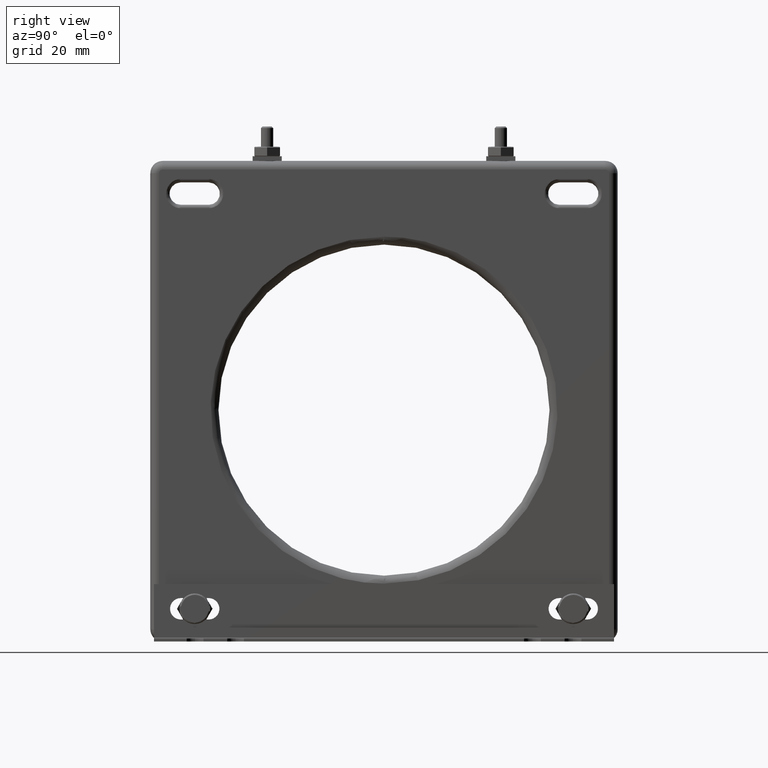
[diagram: clean part render]
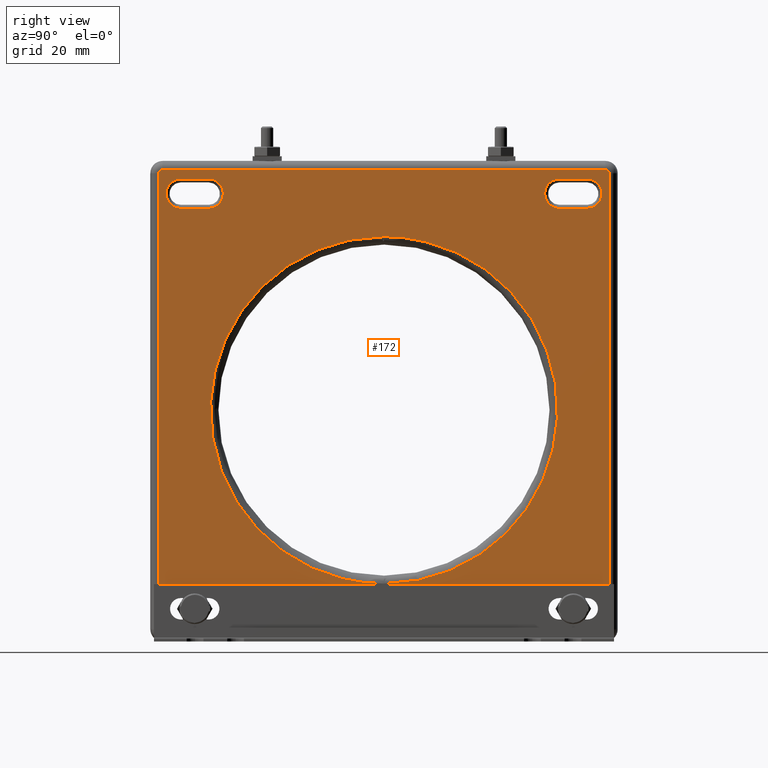
[diagram: same view with one face highlighted and labeled with its STEP entity id]
A machine part, right view. The second image highlights one B-rep face of the part: STEP entity #172.
In plain terms, the highlighted planar face has unit normal (-1, 0, 0).
Its self-contained STEP definition (entity closure, byte-faithful):
#1 = CARTESIAN_POINT ( 'NONE',  ( 1.188976377952758012, 2.879826158549489978, 3.070481629136681878 ) ) ;
#172 = ADVANCED_FACE ( 'NONE', ( #1204, #12539, #11575, #1322 ), #2161, .F. ) ;
#494 = CARTESIAN_POINT ( 'NONE',  ( 1.188976377952755126, -2.889169762202465463, 3.041811023622047028 ) ) ;
#595 = EDGE_LOOP ( 'NONE', ( #8872, #4666 ) ) ;
#681 = CARTESIAN_POINT ( 'NONE',  ( 1.188976377952758012, 2.854126309645356407, 3.087017919683168188 ) ) ;
#696 = CARTESIAN_POINT ( 'NONE',  ( 1.188976377561663744, -2.881900929100080777, 3.066835738141861611 ) ) ;
#740 = AXIS2_PLACEMENT_3D ( 'NONE', #5502, #2229, #10488 ) ;
#822 = LINE ( 'NONE', #11132, #8361 ) ;
#832 = CARTESIAN_POINT ( 'NONE',  ( 1.188976377463769607, -2.881633161054301340, 3.067252941704019520 ) ) ;
#856 = LINE ( 'NONE', #1736, #12464 ) ;
#866 = VERTEX_POINT ( 'NONE', #12679 ) ;
#956 = CARTESIAN_POINT ( 'NONE',  ( 1.188976377952728480, 2.875328211774759168, 3.074974902429919776 ) ) ;
#1026 = ORIENTED_EDGE ( 'NONE', *, *, #9096, .F. ) ;
#1091 = CARTESIAN_POINT ( 'NONE',  ( 1.188976377952755126, 2.889169762202464575, 3.041811023622047028 ) ) ;
#1160 = CARTESIAN_POINT ( 'NONE',  ( 1.188976377952742913, 2.875127893488684361, 3.075171913769202181 ) ) ;
#1204 = FACE_BOUND ( 'NONE', #595, .T. ) ;
#1286 = CARTESIAN_POINT ( 'NONE',  ( 1.188976377952756014, -2.609055118110235938, 2.967316810461512411 ) ) ;
#1322 = FACE_BOUND ( 'NONE', #6374, .T. ) ;
#1432 = EDGE_CURVE ( 'NONE', #866, #12291, #11851, .T. ) ;
#1450 = B_SPLINE_CURVE_WITH_KNOTS ( 'NONE', 3,
 ( #494, #9724, #4533, #8692, #12853, #3502, #5753, #6912, #9918, #9094, #5003, #11075, #10129, #10938, #696, #13250, #832, #7052, #10050, #11141, #3904, #8071, #1789, #4734, #9159, #12097, #13049, #13319, #12229, #2679, #3974, #2887, #2616, #2818, #7938, #11219, #3840, #11009, #11966 ),
 .UNSPECIFIED., .F., .F.,
 ( 4, 2, 2, 2, 2, 2, 1, 1, 1, 2, 2, 2, 2, 2, 2, 2, 2, 2, 2, 2, 4 ),
 ( 0.000000000000000000, 0.1249999999989431787, 0.1874999999984011401, 0.2187499999981189214, 0.2499999999978367027, 0.3124999999972923326, 0.3437499999970106135, 0.3593749999968751663, 0.3671874999968166020, 0.3710937499967930653, 0.3749999999967695286, 0.4062499999969909070, 0.4218749999970990427, 0.4296874999971531106, 0.4374999999972071785, 0.4687499999973921416, 0.4843749999974846787, 0.4921874999975309195, 0.4999999999975771603, 0.7499999999987885246, 1.000000000000000000 ),
 .UNSPECIFIED. ) ;
#1508 = ORIENTED_EDGE ( 'NONE', *, *, #8777, .F. ) ;
#1567 = CARTESIAN_POINT ( 'NONE',  ( 1.188976377952757790, 2.858322435958809749, 3.085709083196776170 ) ) ;
#1583 = CARTESIAN_POINT ( 'NONE',  ( 1.188976377952755792, 1.404083524798027436E-17, -2.227551874387933228 ) ) ;
#1663 = VERTEX_POINT ( 'NONE', #6249 ) ;
#1684 = CARTESIAN_POINT ( 'NONE',  ( 1.188976377952755792, -2.587555920424066309E-16, 2.227551874387932784 ) ) ;
#1701 = CARTESIAN_POINT ( 'NONE',  ( 1.188976377580252874, 2.870092099305645572, 3.079455154633608416 ) ) ;
#1736 = CARTESIAN_POINT ( 'NONE',  ( 1.188976377952756014, -2.429921259842519721, 2.967316810461512411 ) ) ;
#1741 = ORIENTED_EDGE ( 'NONE', *, *, #1963, .F. ) ;
#1789 = CARTESIAN_POINT ( 'NONE',  ( 1.188976377673743645, -2.879680999769397509, 3.070025036113821493 ) ) ;
#1791 = CARTESIAN_POINT ( 'NONE',  ( 1.188976377952756014, -2.250787401574803503, 2.967316810461512411 ) ) ;
#1881 = CARTESIAN_POINT ( 'NONE',  ( 1.188976377952756014, 1.404083524798027436E-17, 2.591895787963685027 ) ) ;
#1926 = CARTESIAN_POINT ( 'NONE',  ( 1.188976377952755126, -2.842519685039370358, 3.088461100785141689 ) ) ;
#1963 = EDGE_CURVE ( 'NONE', #7182, #7726, #6534, .T. ) ;
#1981 = CARTESIAN_POINT ( 'NONE',  ( 1.188976377952756014, 2.609055118110235938, 2.967316810461512411 ) ) ;
#2124 = CARTESIAN_POINT ( 'NONE',  ( 1.188976377940969220, 2.873531656367810161, 3.076672006030262363 ) ) ;
#2161 = PLANE ( 'NONE',  #740 ) ;
#2229 = DIRECTION ( 'NONE',  ( -1.000000000000000000, 0.000000000000000000, 0.000000000000000000 ) ) ;
#2433 =( BOUNDED_CURVE ( )  B_SPLINE_CURVE ( 3, ( #6408, #4557, #11587, #3328 ),
 .UNSPECIFIED., .F., .T. ) 
 B_SPLINE_CURVE_WITH_KNOTS ( ( 4, 4 ),
 ( 0.000000000000000000, 0.5000000000000000000 ),
 .UNSPECIFIED. ) 
 CURVE ( )  GEOMETRIC_REPRESENTATION_ITEM ( )  RATIONAL_B_SPLINE_CURVE ( ( 1.000000000000000000, 0.3333333333333333703, 0.3333333333333333703, 1.000000000000000000 ) ) 
 REPRESENTATION_ITEM ( '' )  );
#2616 = CARTESIAN_POINT ( 'NONE',  ( 1.188976377952724262, -2.875683563854068314, 3.074619550350517816 ) ) ;
#2647 = CARTESIAN_POINT ( 'NONE',  ( 1.188976377952755792, 1.404083524798027436E-17, -2.227551874387933228 ) ) ;
#2655 = VECTOR ( 'NONE', #3924, 39.37007874015748143 ) ;
#2668 = CARTESIAN_POINT ( 'NONE',  ( 1.188976377963847808, 2.862611214961088724, 3.083943618160159605 ) ) ;
#2679 = CARTESIAN_POINT ( 'NONE',  ( 1.188976377952636776, -2.876319558974057777, 3.073965665493519239 ) ) ;
#2714 =( BOUNDED_CURVE ( )  B_SPLINE_CURVE ( 3, ( #1286, #5465, #3340, #11800 ),
 .UNSPECIFIED., .F., .F. ) 
 B_SPLINE_CURVE_WITH_KNOTS ( ( 4, 4 ),
 ( 0.000000000000000000, 1.000000000000000000 ),
 .UNSPECIFIED. ) 
 CURVE ( )  GEOMETRIC_REPRESENTATION_ITEM ( )  RATIONAL_B_SPLINE_CURVE ( ( 1.000000000000000000, 0.3333333333333333703, 0.3333333333333333703, 1.000000000000000000 ) ) 
 REPRESENTATION_ITEM ( '' )  );
#2737 = CARTESIAN_POINT ( 'NONE',  ( 1.188976377952756902, 2.842519685039370358, 3.088461100785141689 ) ) ;
#2751 = VECTOR ( 'NONE', #10699, 39.37007874015748143 ) ;
#2818 = CARTESIAN_POINT ( 'NONE',  ( 1.188976377952754016, -2.875641145331453874, 3.074662613039270465 ) ) ;
#2865 = EDGE_CURVE ( 'NONE', #11613, #3054, #822, .T. ) ;
#2887 = CARTESIAN_POINT ( 'NONE',  ( 1.188976377952738694, -2.875880575198725086, 3.074419232058829721 ) ) ;
#2948 = CARTESIAN_POINT ( 'NONE',  ( 1.188976377706005838, 2.870960176255349161, 3.078799016464372595 ) ) ;
#3010 = CARTESIAN_POINT ( 'NONE',  ( 1.188976377865511136, 2.883285508649549023, 3.065306975028669001 ) ) ;
#3049 = CARTESIAN_POINT ( 'NONE',  ( 1.188976377952755792, -2.889169762202467684, 0.1146456692913401659 ) ) ;
#3054 = VERTEX_POINT ( 'NONE', #4700 ) ;
#3079 = CARTESIAN_POINT ( 'NONE',  ( 1.188976377952369212, 2.874413033092121150, 3.075858786187025462 ) ) ;
#3294 = ORIENTED_EDGE ( 'NONE', *, *, #12677, .F. ) ;
#3328 = CARTESIAN_POINT ( 'NONE',  ( 1.188976377952755792, -2.587555920424066309E-16, 2.227551874387932784 ) ) ;
#3340 = CARTESIAN_POINT ( 'NONE',  ( 1.188976377952756014, -2.984476140608062877, 2.591895787963685471 ) ) ;
#3362 = VECTOR ( 'NONE', #4808, 39.37007874015748143 ) ;
#3414 = ORIENTED_EDGE ( 'NONE', *, *, #8779, .F. ) ;
#3424 = CARTESIAN_POINT ( 'NONE',  ( 1.188976377952755570, 2.889169762202463687, -2.233385826771653537 ) ) ;
#3502 = CARTESIAN_POINT ( 'NONE',  ( 1.188976377952754238, -2.887113368750510389, 3.055528528647343478 ) ) ;
#3595 = DIRECTION ( 'NONE',  ( -0.000000000000000000, 1.000000000000000000, -0.000000000000000000 ) ) ;
#3688 = VERTEX_POINT ( 'NONE', #10072 ) ;
#3757 = CARTESIAN_POINT ( 'NONE',  ( 1.188976377426871123, 2.868103761188036227, 3.080831979220645334 ) ) ;
#3789 = VERTEX_POINT ( 'NONE', #4062 ) ;
#3840 = CARTESIAN_POINT ( 'NONE',  ( 1.188976377865506695, -2.854731328784942956, 3.087250960508297837 ) ) ;
#3863 = DIRECTION ( 'NONE',  ( -0.000000000000000000, -1.000000000000000000, -0.000000000000000000 ) ) ;
#3904 = CARTESIAN_POINT ( 'NONE',  ( 1.188976377522629857, -2.880436243638998306, 3.069006243791163602 ) ) ;
#3924 = DIRECTION ( 'NONE',  ( 0.000000000000000000, 1.000000000000000000, 0.000000000000000000 ) ) ;
#3974 = CARTESIAN_POINT ( 'NONE',  ( 1.188976377952782215, -2.875985593843518817, 3.074311595505014871 ) ) ;
#4062 = CARTESIAN_POINT ( 'NONE',  ( 1.188976377952755792, -2.889169762202466796, -2.233385826771653537 ) ) ;
#4451 = ORIENTED_EDGE ( 'NONE', *, *, #8746, .F. ) ;
#4533 = CARTESIAN_POINT ( 'NONE',  ( 1.188976377952754238, -2.888892743790789641, 3.047672684561605116 ) ) ;
#4557 = CARTESIAN_POINT ( 'NONE',  ( 1.188976377952755792, 4.455103748775865569, -2.227551874387933228 ) ) ;
#4619 = EDGE_CURVE ( 'NONE', #12601, #1663, #2433, .T. ) ;
#4666 = ORIENTED_EDGE ( 'NONE', *, *, #12266, .F. ) ;
#4700 = CARTESIAN_POINT ( 'NONE',  ( 1.188976377952756902, 2.842519685039370358, 3.088461100785141689 ) ) ;
#4707 = CARTESIAN_POINT ( 'NONE',  ( 1.188976377952756014, -2.250787401574803503, 2.591895787963685027 ) ) ;
#4724 = CARTESIAN_POINT ( 'NONE',  ( 1.188976377952757568, 2.861166016375628729, 3.084601905374397379 ) ) ;
#4734 = CARTESIAN_POINT ( 'NONE',  ( 1.188976377706001841, -2.879507677865318360, 3.070251514859341668 ) ) ;
#4788 = CARTESIAN_POINT ( 'NONE',  ( 1.188976377897309478, 2.864723875118965424, 3.082849431961733888 ) ) ;
#4803 = CARTESIAN_POINT ( 'NONE',  ( 1.188976377952756014, -1.875366379076975010, 2.967316810461513299 ) ) ;
#4808 = DIRECTION ( 'NONE',  ( 0.000000000000000000, -1.000000000000000000, 0.000000000000000000 ) ) ;
#4856 = CARTESIAN_POINT ( 'NONE',  ( 1.188976377369120874, 2.868319874629148281, 3.080690758724942580 ) ) ;
#4902 = ORIENTED_EDGE ( 'NONE', *, *, #12526, .F. ) ;
#4910 = CARTESIAN_POINT ( 'NONE',  ( 1.188976377952755792, -4.455103748775865569, -2.227551874387933228 ) ) ;
#5002 = CARTESIAN_POINT ( 'NONE',  ( 1.188976377952756014, 1.404083524798027436E-17, -2.233385826771653537 ) ) ;
#5003 = CARTESIAN_POINT ( 'NONE',  ( 1.188976377963843811, -2.884652279577426537, 3.061902553543877747 ) ) ;
#5068 =( BOUNDED_CURVE ( )  B_SPLINE_CURVE ( 3, ( #8006, #10259, #4803, #1791 ),
 .UNSPECIFIED., .F., .F. ) 
 B_SPLINE_CURVE_WITH_KNOTS ( ( 4, 4 ),
 ( 0.000000000000000000, 1.000000000000000000 ),
 .UNSPECIFIED. ) 
 CURVE ( )  GEOMETRIC_REPRESENTATION_ITEM ( )  RATIONAL_B_SPLINE_CURVE ( ( 1.000000000000000000, 0.3333333333333329263, 0.3333333333333329263, 1.000000000000000000 ) ) 
 REPRESENTATION_ITEM ( '' )  );
#5348 = CARTESIAN_POINT ( 'NONE',  ( 1.188976377952756014, 2.609055118110235938, 2.967316810461512411 ) ) ;
#5465 = CARTESIAN_POINT ( 'NONE',  ( 1.188976377952756014, -2.984476140608062877, 2.967316810461512411 ) ) ;
#5502 = CARTESIAN_POINT ( 'NONE',  ( 1.188976377952756014, 1.404083524798027436E-17, 0.000000000000000000 ) ) ;
#5753 = CARTESIAN_POINT ( 'NONE',  ( 1.188976377952754238, -2.886892384179583271, 3.056227338756658973 ) ) ;
#5809 = CARTESIAN_POINT ( 'NONE',  ( 1.188976377952757568, 2.845450546279741033, 3.088461100785141689 ) ) ;
#5877 = CARTESIAN_POINT ( 'NONE',  ( 1.188976377673747642, 2.870733697505790882, 3.078972338371281925 ) ) ;
#6031 =( BOUNDED_CURVE ( )  B_SPLINE_CURVE ( 3, ( #7362, #10632, #9670, #10940 ),
 .UNSPECIFIED., .F., .F. ) 
 B_SPLINE_CURVE_WITH_KNOTS ( ( 4, 4 ),
 ( 0.000000000000000000, 1.000000000000000000 ),
 .UNSPECIFIED. ) 
 CURVE ( )  GEOMETRIC_REPRESENTATION_ITEM ( )  RATIONAL_B_SPLINE_CURVE ( ( 1.000000000000000000, 0.3333333333333338144, 0.3333333333333338144, 1.000000000000000000 ) ) 
 REPRESENTATION_ITEM ( '' )  );
#6183 = LINE ( 'NONE', #1881, #2655 ) ;
#6248 = ORIENTED_EDGE ( 'NONE', *, *, #2865, .F. ) ;
#6249 = CARTESIAN_POINT ( 'NONE',  ( 1.188976377952755792, -2.587555920424066309E-16, 2.227551874387932784 ) ) ;
#6347 = CARTESIAN_POINT ( 'NONE',  ( 1.188976377922358107, 2.872814292160030814, 3.077307498012270326 ) ) ;
#6356 = VERTEX_POINT ( 'NONE', #10141 ) ;
#6374 = EDGE_LOOP ( 'NONE', ( #1026, #3414, #4902, #10654 ) ) ;
#6384 = CARTESIAN_POINT ( 'NONE',  ( 1.188976377952756014, 2.609055118109996130, 2.591895787963685027 ) ) ;
#6408 = CARTESIAN_POINT ( 'NONE',  ( 1.188976377952755792, 1.404083524798027436E-17, -2.227551874387933228 ) ) ;
#6534 = LINE ( 'NONE', #10635, #2751 ) ;
#6763 = CARTESIAN_POINT ( 'NONE',  ( 1.188976377952757790, 2.856936000173981860, 3.086183722762261716 ) ) ;
#6789 = EDGE_LOOP ( 'NONE', ( #12769, #1508, #3294, #12416 ) ) ;
#6832 = CARTESIAN_POINT ( 'NONE',  ( 1.188976377676794094, 2.866956330885448878, 3.081560856996504061 ) ) ;
#6901 = CARTESIAN_POINT ( 'NONE',  ( 1.188976377522633854, 2.869714905169777008, 3.079727582249345286 ) ) ;
#6912 = CARTESIAN_POINT ( 'NONE',  ( 1.188976377952754682, -2.886417744614099057, 3.057613774541486862 ) ) ;
#7014 = VECTOR ( 'NONE', #3595, 39.37007874015748143 ) ;
#7052 = CARTESIAN_POINT ( 'NONE',  ( 1.188976377426867570, -2.881540640639886686, 3.067395099767714850 ) ) ;
#7182 = VERTEX_POINT ( 'NONE', #9753 ) ;
#7302 = CARTESIAN_POINT ( 'NONE',  ( 1.188976377952755126, -2.889169762202465463, 3.041811023622047028 ) ) ;
#7311 = VECTOR ( 'NONE', #7326, 39.37007874015748143 ) ;
#7326 = DIRECTION ( 'NONE',  ( -0.000000000000000000, -1.000000000000000000, 0.000000000000000000 ) ) ;
#7362 = CARTESIAN_POINT ( 'NONE',  ( 1.188976377952756014, 2.250787401574803059, 2.967316810461512411 ) ) ;
#7379 = CARTESIAN_POINT ( 'NONE',  ( 1.188976377952757790, 2.889172525020653914, 3.047917504443088621 ) ) ;
#7447 = B_SPLINE_CURVE_WITH_KNOTS ( 'NONE', 3,
 ( #2737, #5809, #9971, #10997, #681, #12290, #6763, #1567, #9907, #4724, #2668, #4788, #13037, #6832, #10037, #8942, #13100, #3757, #4856, #7925, #6901, #1701, #5877, #2948, #11337, #8264, #6347, #2124, #3079, #11272, #12562, #1160, #956, #11477, #1, #3010, #8409, #7379, #1091 ),
 .UNSPECIFIED., .F., .F.,
 ( 4, 2, 2, 2, 2, 2, 1, 1, 1, 2, 2, 2, 2, 2, 2, 2, 2, 2, 2, 2, 4 ),
 ( 0.000000000000000000, 0.1250000000013693213, 0.1875000000020632662, 0.2187500000024102109, 0.2500000000027571834, 0.3125000000034711123, 0.3437500000038185011, 0.3593750000040014658, 0.3671875000040873416, 0.3710937500041269765, 0.3750000000041666115, 0.4062500000039493964, 0.4218750000038559156, 0.4296875000038139492, 0.4375000000037719272, 0.4687500000036137204, 0.4843750000035418890, 0.4921875000034963143, 0.5000000000034507952, 0.7500000000017252866, 1.000000000000000000 ),
 .UNSPECIFIED. ) ;
#7726 = VERTEX_POINT ( 'NONE', #3424 ) ;
#7925 = CARTESIAN_POINT ( 'NONE',  ( 1.188976377392833683, 2.868746595294476620, 3.080411366775205995 ) ) ;
#7938 = CARTESIAN_POINT ( 'NONE',  ( 1.188976377952754238, -2.871190290554386237, 3.079117497132549008 ) ) ;
#8006 = CARTESIAN_POINT ( 'NONE',  ( 1.188976377952756014, -2.250787401574803503, 2.591895787963685027 ) ) ;
#8061 = DIRECTION ( 'NONE',  ( -0.000000000000000000, 1.000000000000000000, -0.000000000000000000 ) ) ;
#8071 = CARTESIAN_POINT ( 'NONE',  ( 1.188976377580249100, -2.880163816025132828, 3.069383437923515423 ) ) ;
#8121 = ORIENTED_EDGE ( 'NONE', *, *, #11530, .F. ) ;
#8264 = CARTESIAN_POINT ( 'NONE',  ( 1.188976377805226470, 2.871733008826372391, 3.078189506324409574 ) ) ;
#8361 = VECTOR ( 'NONE', #8061, 39.37007874015748143 ) ;
#8409 = CARTESIAN_POINT ( 'NONE',  ( 1.188976377865510692, 2.887959621924831577, 3.054022667367407351 ) ) ;
#8533 =( BOUNDED_CURVE ( )  B_SPLINE_CURVE ( 3, ( #10314, #12492, #12563, #1981 ),
 .UNSPECIFIED., .F., .F. ) 
 B_SPLINE_CURVE_WITH_KNOTS ( ( 4, 4 ),
 ( 0.000000000000000000, 1.000000000000000000 ),
 .UNSPECIFIED. ) 
 CURVE ( )  GEOMETRIC_REPRESENTATION_ITEM ( )  RATIONAL_B_SPLINE_CURVE ( ( 1.000000000000000000, 0.3333333333333342585, 0.3333333333333342585, 1.000000000000000000 ) ) 
 REPRESENTATION_ITEM ( '' )  );
#8630 = CARTESIAN_POINT ( 'NONE',  ( 1.188976377952756014, -2.250787401574803503, 2.967316810461512411 ) ) ;
#8692 = CARTESIAN_POINT ( 'NONE',  ( 1.188976377952754238, -2.888069030146710237, 3.051991119226589166 ) ) ;
#8746 = EDGE_CURVE ( 'NONE', #3789, #13449, #12252, .T. ) ;
#8777 = EDGE_CURVE ( 'NONE', #11485, #6356, #856, .T. ) ;
#8779 = EDGE_CURVE ( 'NONE', #10670, #8871, #6183, .T. ) ;
#8798 = CARTESIAN_POINT ( 'NONE',  ( 1.188976377952755792, -4.455103748775865569, 2.227551874387932784 ) ) ;
#8871 = VERTEX_POINT ( 'NONE', #6384 ) ;
#8872 = ORIENTED_EDGE ( 'NONE', *, *, #4619, .F. ) ;
#8942 = CARTESIAN_POINT ( 'NONE',  ( 1.188976377504102455, 2.867794924298751269, 3.081031922688107549 ) ) ;
#9094 = CARTESIAN_POINT ( 'NONE',  ( 1.188976377952754016, -2.885310566791697173, 3.060457354958361798 ) ) ;
#9096 = EDGE_CURVE ( 'NONE', #8871, #11673, #8533, .T. ) ;
#9159 = CARTESIAN_POINT ( 'NONE',  ( 1.188976377769279447, -2.879134799500542297, 3.070728444645280497 ) ) ;
#9670 = CARTESIAN_POINT ( 'NONE',  ( 1.188976377952756014, 1.875366379076977230, 2.591895787963685471 ) ) ;
#9724 = CARTESIAN_POINT ( 'NONE',  ( 1.188976377952753793, -2.889169762202464575, 3.044741884862417258 ) ) ;
#9753 = CARTESIAN_POINT ( 'NONE',  ( 1.188976377952755126, 2.889169762202464575, 3.041811023622047028 ) ) ;
#9879 = ORIENTED_EDGE ( 'NONE', *, *, #13091, .F. ) ;
#9907 = CARTESIAN_POINT ( 'NONE',  ( 1.188976377952758012, 2.858953989277825070, 3.085477626730730005 ) ) ;
#9918 = CARTESIAN_POINT ( 'NONE',  ( 1.188976377952754238, -2.886186288148063994, 3.058245327860472873 ) ) ;
#9971 = CARTESIAN_POINT ( 'NONE',  ( 1.188976377952757790, 2.848381345978928891, 3.088184082373467199 ) ) ;
#10003 = CARTESIAN_POINT ( 'NONE',  ( 1.188976377952756014, -2.429921259842519721, 2.591895787963685027 ) ) ;
#10037 = CARTESIAN_POINT ( 'NONE',  ( 1.188976377561667297, 2.867544399558904722, 3.081192267682967945 ) ) ;
#10050 = CARTESIAN_POINT ( 'NONE',  ( 1.188976377369117765, -2.881399420124802546, 3.067611213238480961 ) ) ;
#10069 = ORIENTED_EDGE ( 'NONE', *, *, #10616, .F. ) ;
#10072 = CARTESIAN_POINT ( 'NONE',  ( 1.188976377952756014, 2.250787401574803059, 2.967316810461512411 ) ) ;
#10099 = EDGE_CURVE ( 'NONE', #11673, #3688, #10945, .T. ) ;
#10129 = CARTESIAN_POINT ( 'NONE',  ( 1.188976377840124554, -2.882984328342960811, 3.065057766819304419 ) ) ;
#10141 = CARTESIAN_POINT ( 'NONE',  ( 1.188976377952756014, -2.609055118110235938, 2.967316810461512411 ) ) ;
#10215 =( BOUNDED_CURVE ( )  B_SPLINE_CURVE ( 3, ( #1684, #8798, #4910, #2647 ),
 .UNSPECIFIED., .F., .F. ) 
 B_SPLINE_CURVE_WITH_KNOTS ( ( 4, 4 ),
 ( 0.5000000000000000000, 1.000000000000000000 ),
 .UNSPECIFIED. ) 
 CURVE ( )  GEOMETRIC_REPRESENTATION_ITEM ( )  RATIONAL_B_SPLINE_CURVE ( ( 1.000000000000000000, 0.3333333333333333703, 0.3333333333333333703, 1.000000000000000000 ) ) 
 REPRESENTATION_ITEM ( '' )  );
#10259 = CARTESIAN_POINT ( 'NONE',  ( 1.188976377952756014, -1.875366379076975010, 2.591895787963685027 ) ) ;
#10314 = CARTESIAN_POINT ( 'NONE',  ( 1.188976377952756014, 2.609055118109996130, 2.591895787963685027 ) ) ;
#10347 = DIRECTION ( 'NONE',  ( -0.000000000000000000, 3.542511246410839985E-16, 1.000000000000000000 ) ) ;
#10488 = DIRECTION ( 'NONE',  ( 0.000000000000000000, 0.000000000000000000, 1.000000000000000000 ) ) ;
#10616 = EDGE_CURVE ( 'NONE', #7726, #3789, #12305, .T. ) ;
#10632 = CARTESIAN_POINT ( 'NONE',  ( 1.188976377952756014, 1.875366379076977230, 2.967316810461511967 ) ) ;
#10635 = CARTESIAN_POINT ( 'NONE',  ( 1.188976377952755792, 2.889169762202463687, 0.1146456692913385839 ) ) ;
#10654 = ORIENTED_EDGE ( 'NONE', *, *, #10099, .F. ) ;
#10670 = VERTEX_POINT ( 'NONE', #11285 ) ;
#10699 = DIRECTION ( 'NONE',  ( -0.000000000000000000, -1.771255623205419992E-16, -1.000000000000000000 ) ) ;
#10938 = CARTESIAN_POINT ( 'NONE',  ( 1.188976377676790763, -2.882269518413637321, 3.066247669468385784 ) ) ;
#10940 = CARTESIAN_POINT ( 'NONE',  ( 1.188976377952756014, 2.250787401574804392, 2.591895787963685471 ) ) ;
#10945 = LINE ( 'NONE', #11840, #3362 ) ;
#10997 = CARTESIAN_POINT ( 'NONE',  ( 1.188976377952757790, 2.852699780643913829, 3.087360368729388238 ) ) ;
#11009 = CARTESIAN_POINT ( 'NONE',  ( 1.188976377952754238, -2.848626165860411508, 3.088463863603871484 ) ) ;
#11075 = CARTESIAN_POINT ( 'NONE',  ( 1.188976377897305703, -2.883558093378942200, 3.064015213701829055 ) ) ;
#11132 = CARTESIAN_POINT ( 'NONE',  ( 1.188976377952755792, -5.323287634848740457E-16, 3.088461100785141689 ) ) ;
#11141 = CARTESIAN_POINT ( 'NONE',  ( 1.188976377392829908, -2.881120028165827573, 3.068037933916573312 ) ) ;
#11219 = CARTESIAN_POINT ( 'NONE',  ( 1.188976377865507139, -2.866015636446399117, 3.082576847232933126 ) ) ;
#11272 = CARTESIAN_POINT ( 'NONE',  ( 1.188976377952640995, 2.874674326931504265, 3.075610897537127908 ) ) ;
#11285 = CARTESIAN_POINT ( 'NONE',  ( 1.188976377952756014, 2.250787401574804392, 2.591895787963685471 ) ) ;
#11337 = CARTESIAN_POINT ( 'NONE',  ( 1.188976377769283221, 2.871437106050790167, 3.078426138092560826 ) ) ;
#11477 = CARTESIAN_POINT ( 'NONE',  ( 1.188976377952757790, 2.875371274456606674, 3.074932483914142534 ) ) ;
#11485 = VERTEX_POINT ( 'NONE', #8630 ) ;
#11530 = EDGE_CURVE ( 'NONE', #13449, #11613, #1450, .T. ) ;
#11575 = FACE_BOUND ( 'NONE', #6789, .T. ) ;
#11587 = CARTESIAN_POINT ( 'NONE',  ( 1.188976377952755792, 4.455103748775865569, 2.227551874387933672 ) ) ;
#11613 = VERTEX_POINT ( 'NONE', #1926 ) ;
#11673 = VERTEX_POINT ( 'NONE', #5348 ) ;
#11800 = CARTESIAN_POINT ( 'NONE',  ( 1.188976377952756014, -2.609055118110114702, 2.591895787963685471 ) ) ;
#11840 = CARTESIAN_POINT ( 'NONE',  ( 1.188976377952756014, 1.404083524798027436E-17, 2.967316810461512411 ) ) ;
#11851 = LINE ( 'NONE', #10003, #7014 ) ;
#11966 = CARTESIAN_POINT ( 'NONE',  ( 1.188976377952755126, -2.842519685039370358, 3.088461100785141689 ) ) ;
#12097 = CARTESIAN_POINT ( 'NONE',  ( 1.188976377805222473, -2.878898167738283664, 3.071024347413321642 ) ) ;
#12229 = CARTESIAN_POINT ( 'NONE',  ( 1.188976377952365437, -2.876567447625525631, 3.073704371652078660 ) ) ;
#12252 = LINE ( 'NONE', #3049, #12893 ) ;
#12266 = EDGE_CURVE ( 'NONE', #1663, #12601, #10215, .T. ) ;
#12290 = CARTESIAN_POINT ( 'NONE',  ( 1.188976377952758234, 2.856237190064668585, 3.086404707333189723 ) ) ;
#12291 = VERTEX_POINT ( 'NONE', #4707 ) ;
#12305 = LINE ( 'NONE', #5002, #7311 ) ;
#12416 = ORIENTED_EDGE ( 'NONE', *, *, #1432, .F. ) ;
#12464 = VECTOR ( 'NONE', #3863, 39.37007874015748143 ) ;
#12492 = CARTESIAN_POINT ( 'NONE',  ( 1.188976377952755792, 2.984476140608062877, 2.591895787963685027 ) ) ;
#12526 = EDGE_CURVE ( 'NONE', #3688, #10670, #6031, .T. ) ;
#12539 = FACE_OUTER_BOUND ( 'NONE', #12967, .T. ) ;
#12562 = CARTESIAN_POINT ( 'NONE',  ( 1.188976377952786212, 2.875020256937235619, 3.075276932411787456 ) ) ;
#12563 = CARTESIAN_POINT ( 'NONE',  ( 1.188976377952755792, 2.984476140608063321, 2.967316810461511967 ) ) ;
#12601 = VERTEX_POINT ( 'NONE', #1583 ) ;
#12677 = EDGE_CURVE ( 'NONE', #12291, #11485, #5068, .T. ) ;
#12679 = CARTESIAN_POINT ( 'NONE',  ( 1.188976377952756014, -2.609055118110114702, 2.591895787963685471 ) ) ;
#12769 = ORIENTED_EDGE ( 'NONE', *, *, #13288, .F. ) ;
#12853 = CARTESIAN_POINT ( 'NONE',  ( 1.188976377952754238, -2.887726581100491074, 3.053417648228033077 ) ) ;
#12893 = VECTOR ( 'NONE', #10347, 39.37007874015748143 ) ;
#12967 = EDGE_LOOP ( 'NONE', ( #10069, #1741, #9879, #6248, #8121, #4451 ) ) ;
#13037 = CARTESIAN_POINT ( 'NONE',  ( 1.188976377840128995, 2.865766428236403929, 3.082275666925784030 ) ) ;
#13049 = CARTESIAN_POINT ( 'NONE',  ( 1.188976377922353889, -2.878016159442511768, 3.072105630726725156 ) ) ;
#13091 = EDGE_CURVE ( 'NONE', #3054, #7182, #7447, .T. ) ;
#13100 = CARTESIAN_POINT ( 'NONE',  ( 1.188976377463773604, 2.867961603121052416, 3.080924499637204939 ) ) ;
#13250 = CARTESIAN_POINT ( 'NONE',  ( 1.188976377504098236, -2.881740584105209724, 3.067086262881713488 ) ) ;
#13288 = EDGE_CURVE ( 'NONE', #6356, #866, #2714, .T. ) ;
#13319 = CARTESIAN_POINT ( 'NONE',  ( 1.188976377940965001, -2.877380667468126152, 3.072822994927277840 ) ) ;
#13449 = VERTEX_POINT ( 'NONE', #7302 ) ;